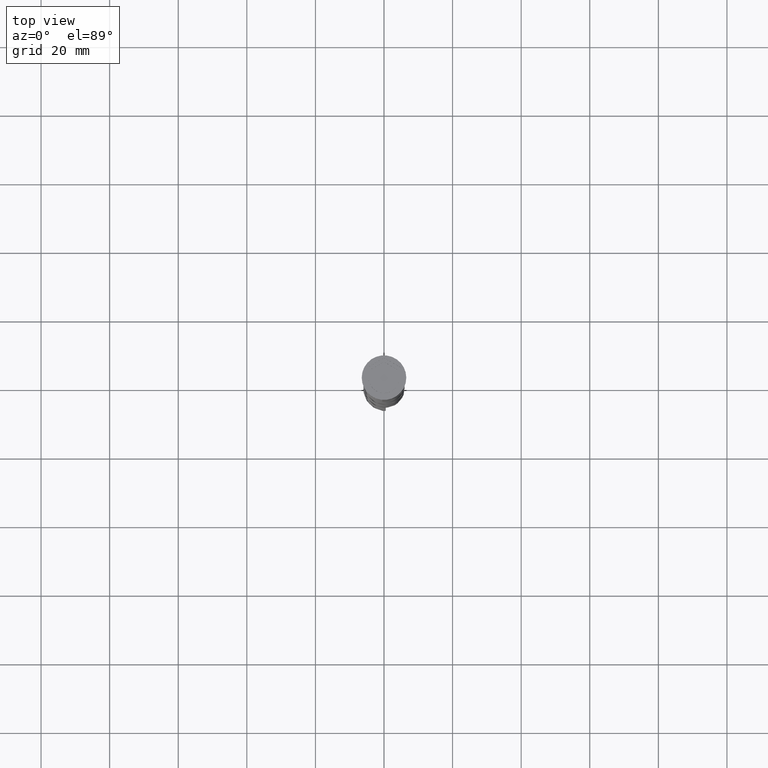
[diagram: clean part render]
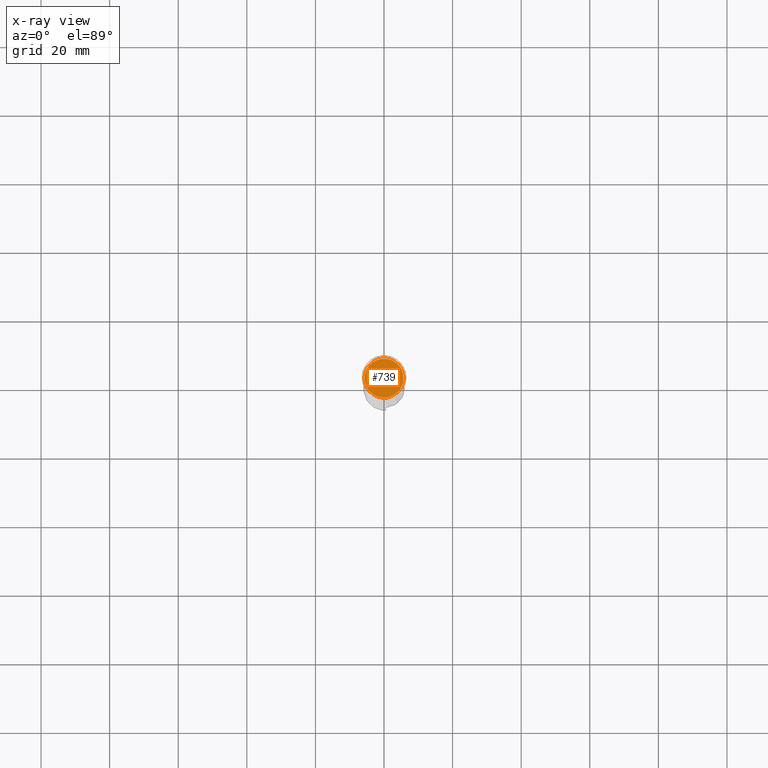
[diagram: x-ray — body ghosted, one internal face saturated and labeled with its STEP entity id]
A machine part, top view, then the same camera in x-ray: the body is ghosted and one INTERNAL B-rep face — a face not visible from any outside direction — is saturated and labeled: STEP entity #739.
In plain terms, the highlighted planar face has unit normal (0, 0, -1).
Its self-contained STEP definition (entity closure, byte-faithful):
#6 = VERTEX_POINT ( 'NONE', #2781 ) ;
#141 = VERTEX_POINT ( 'NONE', #3475 ) ;
#211 = AXIS2_PLACEMENT_3D ( 'NONE', #313, #1501, #3785 ) ;
#313 = CARTESIAN_POINT ( 'NONE',  ( 0.000000000000000000, 0.000000000000000000, -10.50000000000000178 ) ) ;
#739 = ADVANCED_FACE ( 'NONE', ( #1801 ), #3005, .F. ) ;
#932 = DIRECTION ( 'NONE',  ( -0.000000000000000000, -0.000000000000000000, 1.000000000000000000 ) ) ;
#1041 = DIRECTION ( 'NONE',  ( -0.000000000000000000, -0.000000000000000000, 1.000000000000000000 ) ) ;
#1332 = CIRCLE ( 'NONE', #2461, 5.700000000000002842 ) ;
#1431 = EDGE_CURVE ( 'NONE', #141, #6, #2653, .T. ) ;
#1501 = DIRECTION ( 'NONE',  ( 0.000000000000000000, 0.000000000000000000, -1.000000000000000000 ) ) ;
#1560 = EDGE_CURVE ( 'NONE', #6, #141, #1332, .T. ) ;
#1624 = DIRECTION ( 'NONE',  ( -1.000000000000000000, 0.000000000000000000, 0.000000000000000000 ) ) ;
#1776 = AXIS2_PLACEMENT_3D ( 'NONE', #3183, #1041, #1624 ) ;
#1777 = CARTESIAN_POINT ( 'NONE',  ( 0.000000000000000000, 0.000000000000000000, -10.50000000000000178 ) ) ;
#1801 = FACE_OUTER_BOUND ( 'NONE', #3248, .T. ) ;
#2051 = ORIENTED_EDGE ( 'NONE', *, *, #1431, .T. ) ;
#2461 = AXIS2_PLACEMENT_3D ( 'NONE', #1777, #932, #3201 ) ;
#2653 = CIRCLE ( 'NONE', #1776, 5.700000000000002842 ) ;
#2781 = CARTESIAN_POINT ( 'NONE',  ( 5.700000000000002842, 7.164183775012019380E-16, -10.50000000000000178 ) ) ;
#2852 = ORIENTED_EDGE ( 'NONE', *, *, #1560, .T. ) ;
#3005 = PLANE ( 'NONE',  #211 ) ;
#3183 = CARTESIAN_POINT ( 'NONE',  ( 0.000000000000000000, 0.000000000000000000, -10.50000000000000178 ) ) ;
#3201 = DIRECTION ( 'NONE',  ( -1.000000000000000000, 0.000000000000000000, 0.000000000000000000 ) ) ;
#3248 = EDGE_LOOP ( 'NONE', ( #2051, #2852 ) ) ;
#3475 = CARTESIAN_POINT ( 'NONE',  ( -5.700000000000002842, 0.000000000000000000, -10.50000000000000178 ) ) ;
#3785 = DIRECTION ( 'NONE',  ( -1.000000000000000000, 0.000000000000000000, -0.000000000000000000 ) ) ;